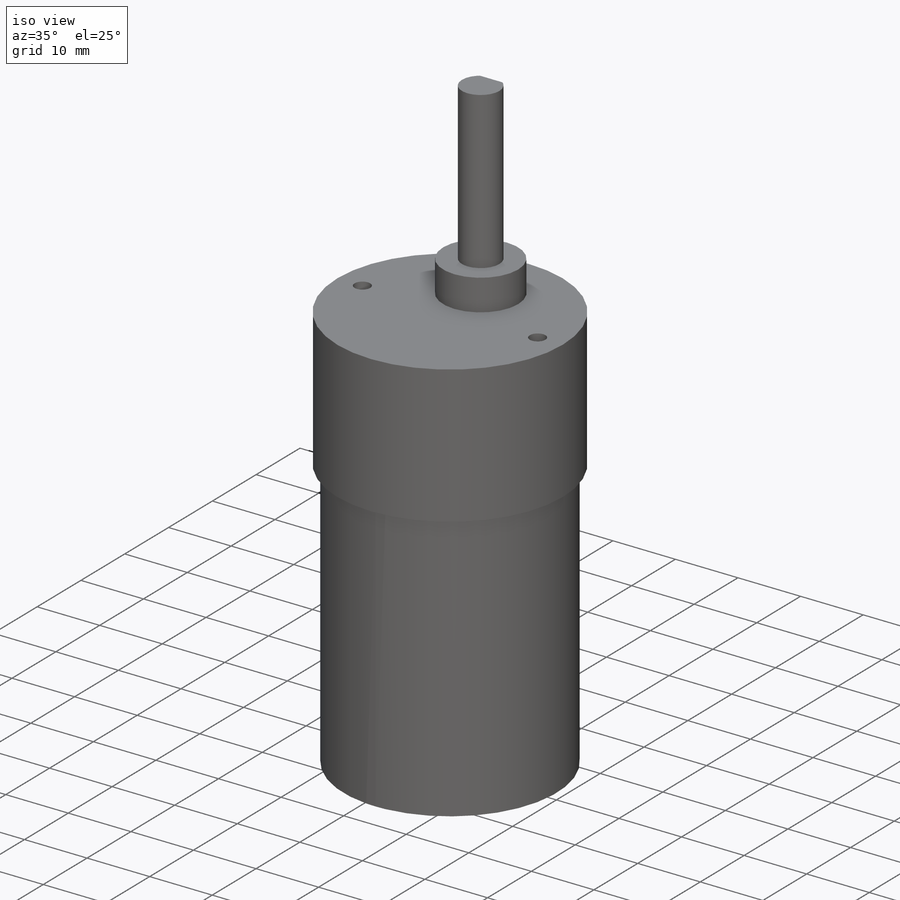
[diagram: iso view]
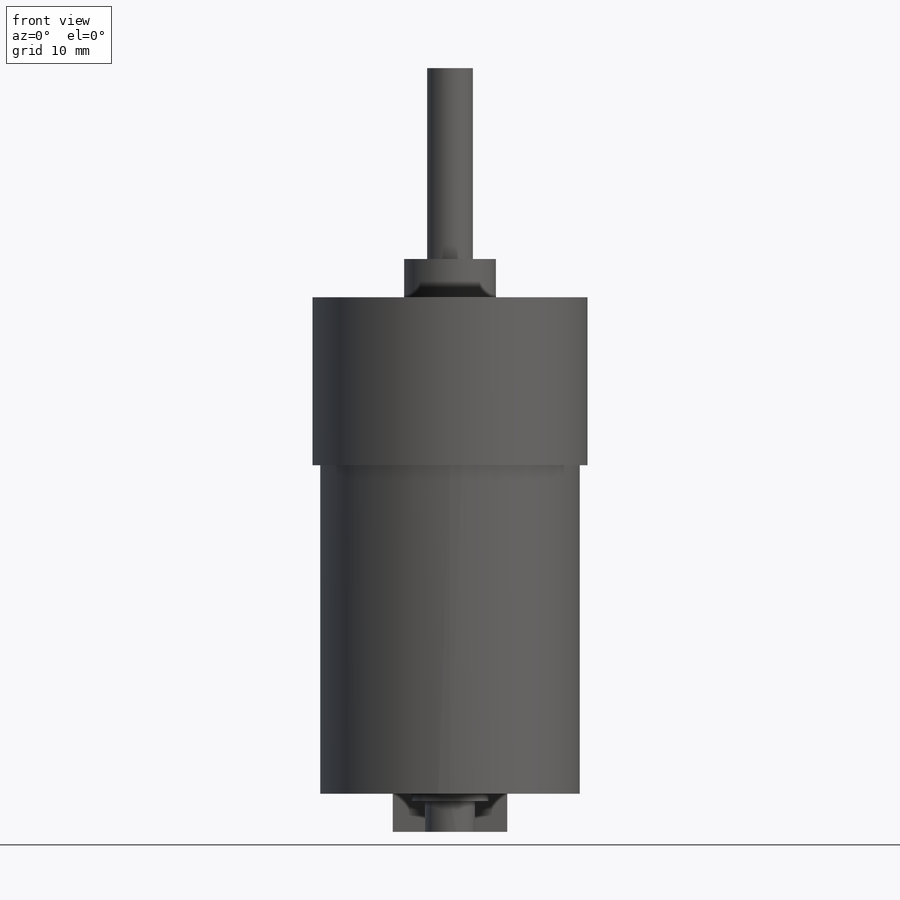
[diagram: front view]
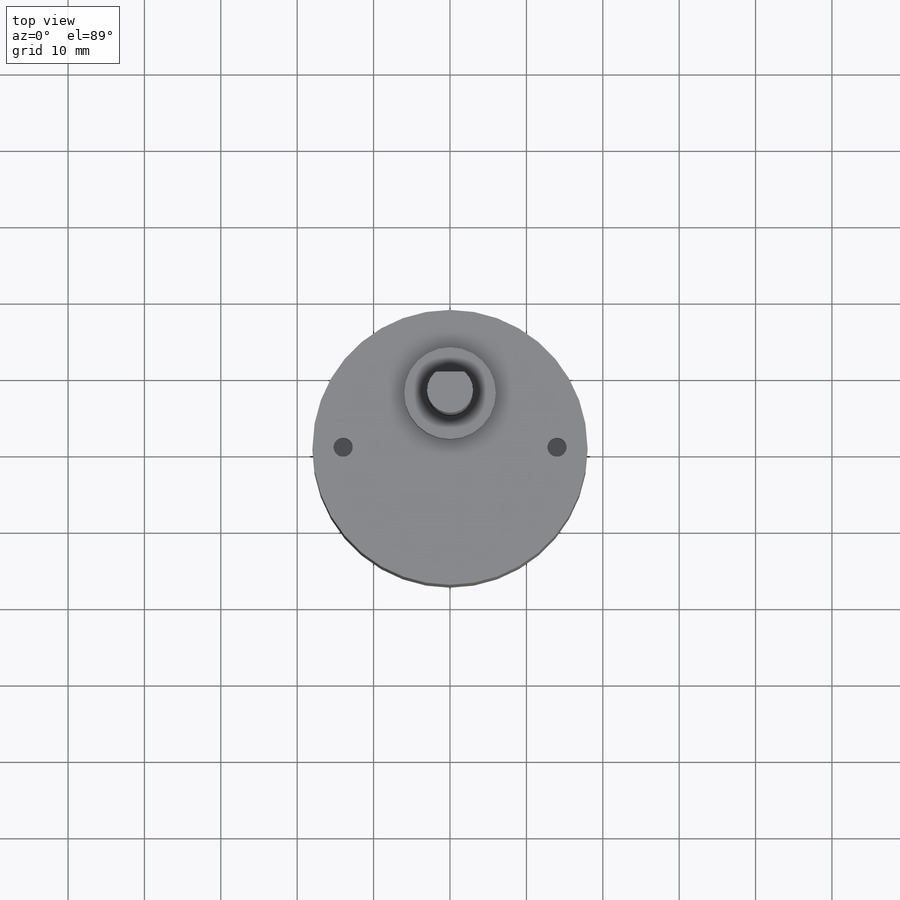
[diagram: top view]
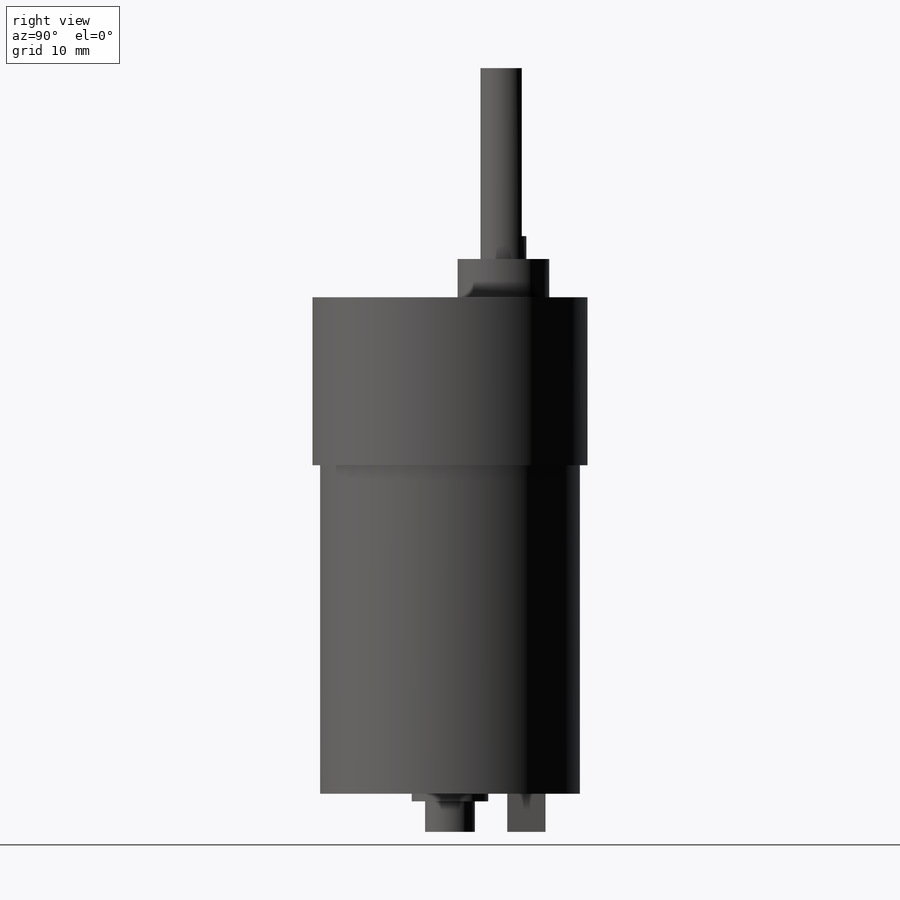
[diagram: right view]
SOLIDWORKS PART (.sldprt)
format: sldprt  version: not decoded by parser v0  size: 212,992 bytes
history: native  units: mm
features: sketch x9, extrude x7, plane x3, cut_extrude x2, material x1 (+10 scaffold rows collapsed)
feature tree (32):
  scaffold x10  (default folders/planes/origin — collapsed)
  material  "3.0205 (EN-AW 1200)"
  plane  "Plan de face"
  plane  "Plan de dessus"
  plane  "Plan de droite"
  sketch  "Esquisse1"  dims[D1=34.0mm]
  extrude  "Boss.-Extru.1"  Depth=43mm
  sketch  "Esquisse2"  dims[D1=36.0mm]
  extrude  "Boss.-Extru.2"  Depth=22mm
  sketch  "Esquisse3"  dims[D1=12.0mm D2=7.0mm]
  extrude  "Boss.-Extru.3"  Depth=5mm
  sketch  "Esquisse4"  dims[D1=6.0mm D2=0.0mm]
  extrude  "Boss.-Extru.4"  Depth=25mm
  sketch  "Esquisse5"  dims[c1.D1=~3.908466mm c1.D2=2.5mm c1.D3=2.5mm c2.D1=28.0mm c2.D4=14.0mm]
  cut_extrude  "Enlèv. mat.-Extru.1"  Depth=5mm
  sketch  "Esquisse6"  dims[D1=15.0mm D2=7.5mm D3=5.0mm D4=7.5mm]
  extrude  "Boss.-Extru.5"  Depth=5mm
  sketch  "Esquisse7"  dims[D1=2.4mm]
  cut_extrude  "Enlèv. mat.-Extru.4"  Depth=22mm
  sketch  "Esquisse8"  dims[D1=10.0mm]
  extrude  "Boss.-Extru.6"  Depth=1mm
  sketch  "Esquisse9"  dims[D1=6.5mm]
  extrude  "Boss.-Extru.7"  Depth=4mm
decode coverage: 18 of 18 modeling features carry decoded parameters
note: ~ marks probable driven/reference dimensions
note: suppression state not decoded; provenance and decode notes live in map.json
